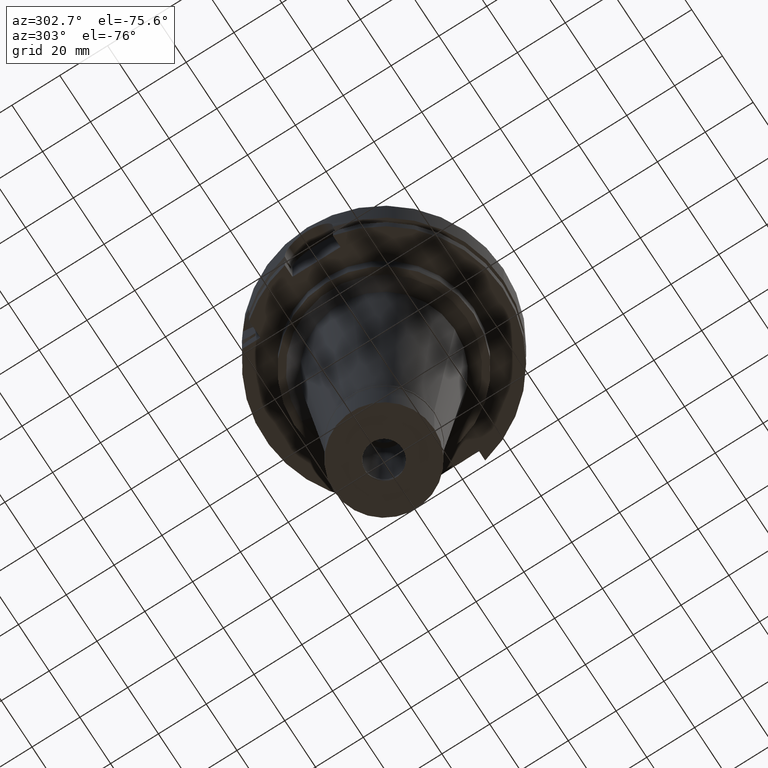
[diagram: clean part render]
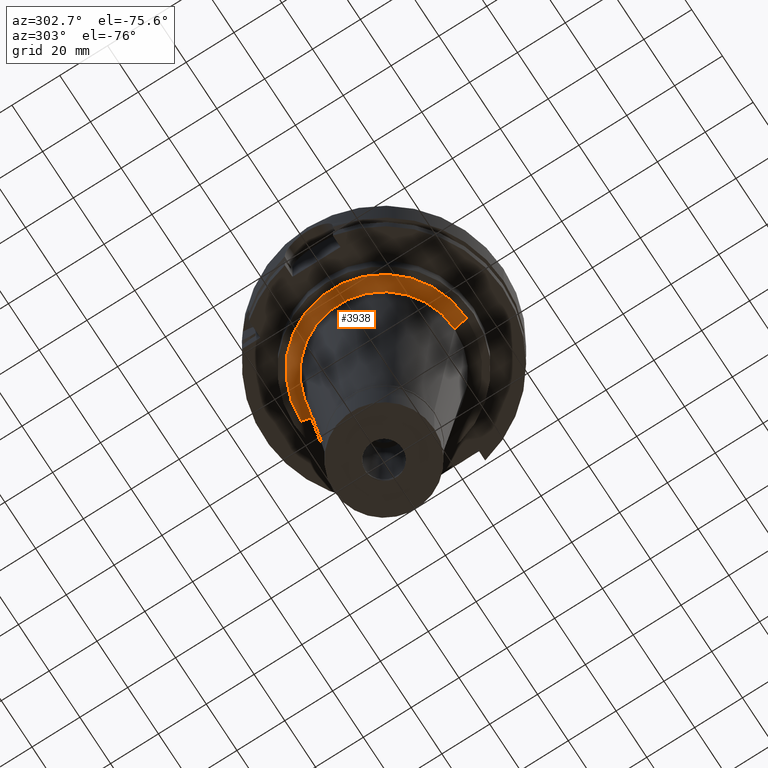
[diagram: same view with one face highlighted and labeled with its STEP entity id]
A machine part, auxiliary view. The second image highlights one B-rep face of the part: STEP entity #3938.
In plain terms, the highlighted conical surface has half-angle 45 deg.
Its self-contained STEP definition (entity closure, byte-faithful):
#27 = LINE ( 'NONE', #5195, #2354 ) ;
#620 = CIRCLE ( 'NONE', #3136, 29.56514015919000116 ) ;
#830 = CARTESIAN_POINT ( 'NONE',  ( 0.0000000000000000000, -34.56514015919000116, -37.00000000000000000 ) ) ;
#989 = CONICAL_SURFACE ( 'NONE', #1697, 32.06514015919000116, 0.7853981633972997312 ) ;
#1072 = EDGE_CURVE ( 'NONE', #2101, #5337, #27, .T. ) ;
#1122 = EDGE_LOOP ( 'NONE', ( #1149, #4577, #3771, #4256 ) ) ;
#1135 = CARTESIAN_POINT ( 'NONE',  ( 0.0000000000000000000, 34.56514015919000116, -37.00000000000000000 ) ) ;
#1149 = ORIENTED_EDGE ( 'NONE', *, *, #2989, .F. ) ;
#1441 = CARTESIAN_POINT ( 'NONE',  ( 0.0000000000000000000, 29.56514015919000116, -42.00000000000000000 ) ) ;
#1697 = AXIS2_PLACEMENT_3D ( 'NONE', #3174, #3596, #2366 ) ;
#2101 = VERTEX_POINT ( 'NONE', #830 ) ;
#2173 = AXIS2_PLACEMENT_3D ( 'NONE', #3714, #3285, #4619 ) ;
#2354 = VECTOR ( 'NONE', #3920, 1000.000000000000000 ) ;
#2366 = DIRECTION ( 'NONE',  ( 0.0000000000000000000, 1.000000000000000000, 0.0000000000000000000 ) ) ;
#2446 = CARTESIAN_POINT ( 'NONE',  ( 0.0000000000000000000, -29.56514015919000116, -42.00000000000000000 ) ) ;
#2468 = CARTESIAN_POINT ( 'NONE',  ( 0.0000000000000000000, 0.0000000000000000000, -42.00000000000000000 ) ) ;
#2858 = FACE_OUTER_BOUND ( 'NONE', #1122, .T. ) ;
#2888 = EDGE_CURVE ( 'NONE', #2905, #3496, #5439, .T. ) ;
#2905 = VERTEX_POINT ( 'NONE', #3788 ) ;
#2934 = DIRECTION ( 'NONE',  ( 0.0000000000000000000, -1.000000000000000000, 0.0000000000000000000 ) ) ;
#2989 = EDGE_CURVE ( 'NONE', #5337, #3496, #620, .T. ) ;
#3136 = AXIS2_PLACEMENT_3D ( 'NONE', #2468, #3276, #2934 ) ;
#3174 = CARTESIAN_POINT ( 'NONE',  ( 0.0000000000000000000, 0.0000000000000000000, -39.50000000000000000 ) ) ;
#3276 = DIRECTION ( 'NONE',  ( 0.0000000000000000000, 0.0000000000000000000, -1.000000000000000000 ) ) ;
#3285 = DIRECTION ( 'NONE',  ( 0.0000000000000000000, 0.0000000000000000000, -1.000000000000000000 ) ) ;
#3496 = VERTEX_POINT ( 'NONE', #1441 ) ;
#3596 = DIRECTION ( 'NONE',  ( 0.0000000000000000000, 0.0000000000000000000, 1.000000000000000000 ) ) ;
#3714 = CARTESIAN_POINT ( 'NONE',  ( 0.0000000000000000000, 0.0000000000000000000, -37.00000000000000000 ) ) ;
#3771 = ORIENTED_EDGE ( 'NONE', *, *, #4800, .T. ) ;
#3788 = CARTESIAN_POINT ( 'NONE',  ( 0.0000000000000000000, 34.56514015919000116, -37.00000000000000000 ) ) ;
#3813 = DIRECTION ( 'NONE',  ( 0.0000000000000000000, -0.7071067811867980391, -0.7071067811862969954 ) ) ;
#3920 = DIRECTION ( 'NONE',  ( 0.0000000000000000000, 0.7071067811867980391, -0.7071067811862969954 ) ) ;
#3938 = ADVANCED_FACE ( 'NONE', ( #2858 ), #989, .T. ) ;
#4256 = ORIENTED_EDGE ( 'NONE', *, *, #2888, .T. ) ;
#4577 = ORIENTED_EDGE ( 'NONE', *, *, #1072, .F. ) ;
#4619 = DIRECTION ( 'NONE',  ( 0.0000000000000000000, -1.000000000000000000, 0.0000000000000000000 ) ) ;
#4684 = CIRCLE ( 'NONE', #2173, 34.56514015919000116 ) ;
#4800 = EDGE_CURVE ( 'NONE', #2101, #2905, #4684, .T. ) ;
#5195 = CARTESIAN_POINT ( 'NONE',  ( 0.0000000000000000000, -34.56514015919000116, -37.00000000000000000 ) ) ;
#5308 = VECTOR ( 'NONE', #3813, 1000.000000000000000 ) ;
#5337 = VERTEX_POINT ( 'NONE', #2446 ) ;
#5439 = LINE ( 'NONE', #1135, #5308 ) ;